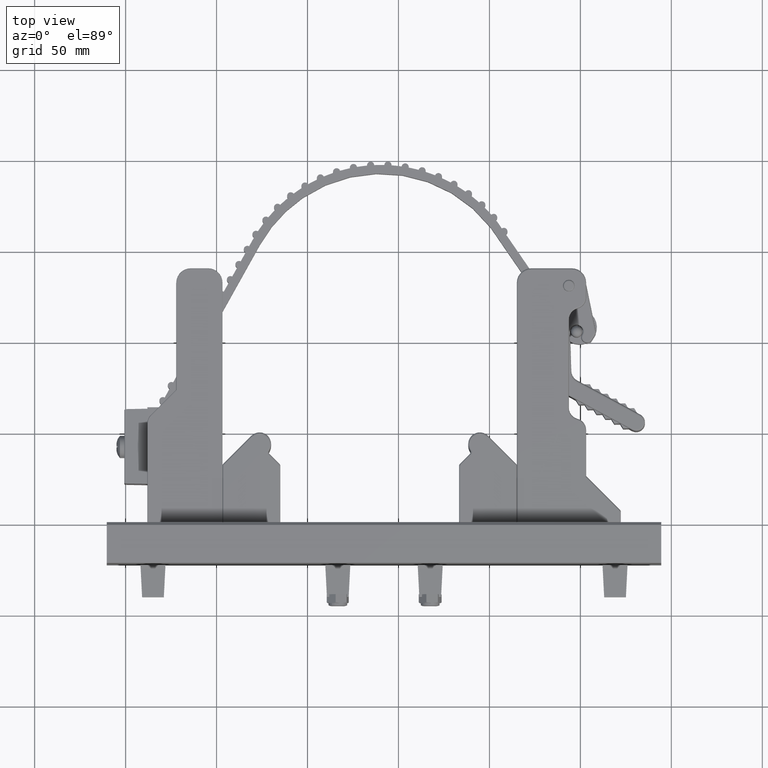
[diagram: clean part render]
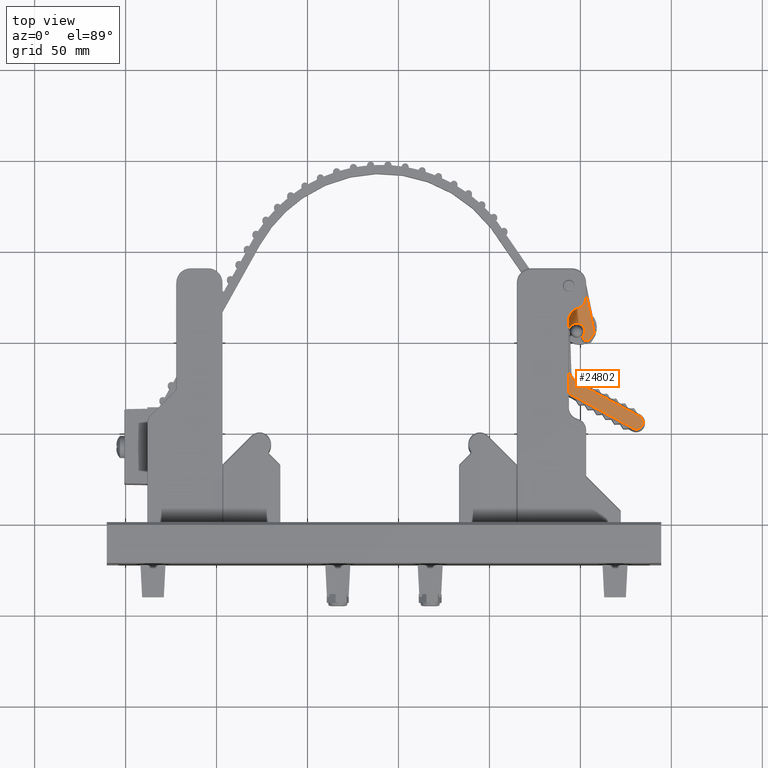
[diagram: same view with one face highlighted and labeled with its STEP entity id]
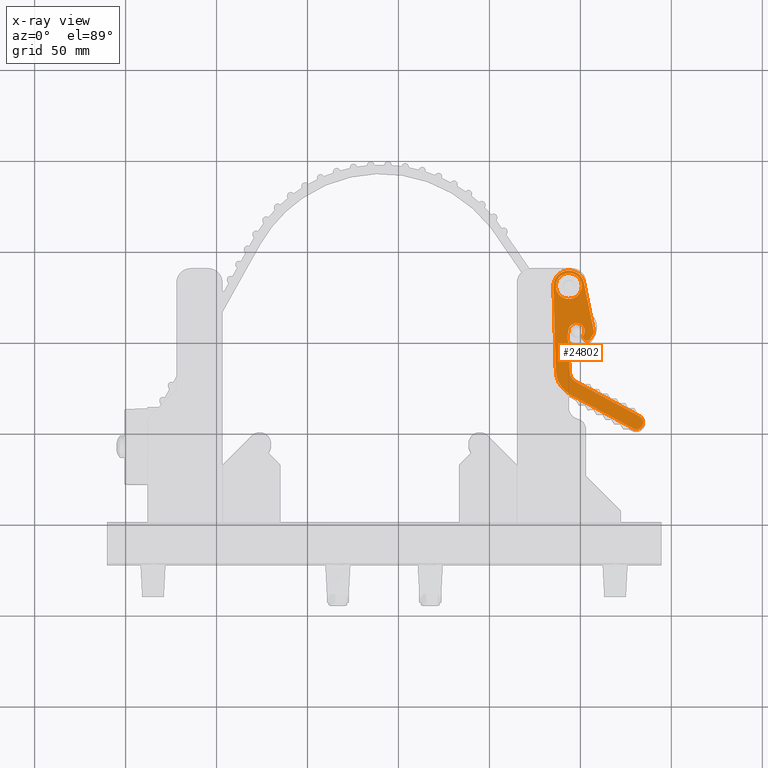
[diagram: x-ray of the same camera — body ghosted, the highlighted face saturated]
A machine part, top view. The second image highlights one B-rep face of the part: STEP entity #24802.
The next image is the same camera in x-ray: the body ghosted, the highlighted face saturated — about 0% of this face is hidden behind the body in this view.
In plain terms, the highlighted planar face has unit normal (-0, 0, -1).
Its self-contained STEP definition (entity closure, byte-faithful):
#426 = CARTESIAN_POINT ( 'NONE',  ( -0.5143528962144993100, -0.9878521173158872900, -0.8750000000000000000 ) ) ;
#427 = CARTESIAN_POINT ( 'NONE',  ( -1.448750000000000000, -2.861718516948535300, -0.8750000000000000000 ) ) ;
#436 = CARTESIAN_POINT ( 'NONE',  ( -0.2879209152510844300, -1.066375635833302100, -0.8750000000000000000 ) ) ;
#725 = CARTESIAN_POINT ( 'NONE',  ( 0.2812500000000000600, 0.0000000000000000000, -0.8750000000000000000 ) ) ;
#727 = CARTESIAN_POINT ( 'NONE',  ( 0.3350000000000000200, -2.542228540521869200E-033, -0.8750000000000000000 ) ) ;
#733 = CARTESIAN_POINT ( 'NONE',  ( 0.04083529930315341100, -1.000211275241957400, -0.8750000000000000000 ) ) ;
#735 = CARTESIAN_POINT ( 'NONE',  ( -1.301250000000000000, -3.117196011064944800, -0.8750000000000000000 ) ) ;
#745 = CARTESIAN_POINT ( 'NONE',  ( 0.04000000000000000800, -0.9941375001624821500, -0.8750000000000000000 ) ) ;
#747 = CARTESIAN_POINT ( 'NONE',  ( -0.1050000000000004700, -2.085904092724979500, -0.8750000000000000000 ) ) ;
#761 = CARTESIAN_POINT ( 'NONE',  ( -0.2399361185368783500, -0.8391898318408291800, -0.8750000000000000000 ) ) ;
#763 = CARTESIAN_POINT ( 'NONE',  ( 0.3350000000000001300, -1.834756725627492100, -0.8750000000000000000 ) ) ;
#768 = CARTESIAN_POINT ( 'NONE',  ( 0.04000000000000010500, -1.834756725627492100, -0.8750000000000000000 ) ) ;
#769 = CARTESIAN_POINT ( 'NONE',  ( -0.3299105972590897800, 0.05817213951842177500, -0.8750000000000000000 ) ) ;
#783 = CARTESIAN_POINT ( 'NONE',  ( -0.4996473951770895000, -1.056784626608064300, -0.8750000000000000000 ) ) ;
#788 = CARTESIAN_POINT ( 'NONE',  ( 0.04000000000000007000, -1.230685781858948500, -0.8750000000000000000 ) ) ;
#790 = CARTESIAN_POINT ( 'NONE',  ( 0.04249999999999883700, -2.341381586841389400, -0.8750000000000000000 ) ) ;
#795 = CARTESIAN_POINT ( 'NONE',  ( 0.03999999999999977900, -0.9900629320275555800, -0.8750000000000000000 ) ) ;
#809 = CARTESIAN_POINT ( 'NONE',  ( -0.2812500000000000600, 3.444319122601932200E-017, -0.8750000000000000000 ) ) ;
#1074 = EDGE_CURVE ( 'NONE', #78775, #78698, #32181, .T. ) ;
#1086 = EDGE_CURVE ( 'NONE', #78768, #78832, #32199, .T. ) ;
#1098 = EDGE_CURVE ( 'NONE', #32427, #32345, #32216, .T. ) ;
#2169 = CARTESIAN_POINT ( 'NONE',  ( -0.4297726103961268000, -1.160047514577966300, -0.8750000000000000000 ) ) ;
#2202 = CARTESIAN_POINT ( 'NONE',  ( 0.04083529930315349400, -1.224612006779473200, -0.8750000000000000000 ) ) ;
#2206 = CARTESIAN_POINT ( 'NONE',  ( -0.2743749999999998100, -1.112411641010715400, -0.8750000000000000000 ) ) ;
#2239 = CARTESIAN_POINT ( 'NONE',  ( 0.05626571714277794200, -1.112411641010715400, -0.8750000000000001100 ) ) ;
#7132 = LINE ( 'NONE', #13066, #7133 ) ;
#7133 = VECTOR ( 'NONE', #13067, 39.37007874015748100 ) ;
#12554 = EDGE_LOOP ( 'NONE', ( #55826, #55827, #55829, #55831, #55834, #55836, #55838, #55840, #55842, #55844, #55845, #55846, #55848, #55850, #55852, #55854, #55856, #55858, #55860, #55863 ) ) ;
#13066 = CARTESIAN_POINT ( 'NONE',  ( 0.3350000000000000200, 1.246989675926297400E-017, -0.8750000000000000000 ) ) ;
#13067 = DIRECTION ( 'NONE',  ( 3.722357241571036200E-017, -1.000000000000000000, -0.0000000000000000000 ) ) ;
#17691 = CARTESIAN_POINT ( 'NONE',  ( -1.375000000000000000, -2.989457264006740300, -0.8750000000000000000 ) ) ;
#17693 = DIRECTION ( 'NONE',  ( -0.0000000000000000000, -0.0000000000000000000, -1.000000000000000000 ) ) ;
#17694 = DIRECTION ( 'NONE',  ( 1.000000000000000000, 0.0000000000000000000, 0.0000000000000000000 ) ) ;
#17699 = CARTESIAN_POINT ( 'NONE',  ( 0.8769729670788797300, -1.518961735845054900, -0.8750000000000000000 ) ) ;
#17700 = DIRECTION ( 'NONE',  ( 0.8660254037844394800, 0.4999999999999983900, -0.0000000000000000000 ) ) ;
#17701 = CARTESIAN_POINT ( 'NONE',  ( 0.06250000000000006900, -1.230685781858948500, -0.8750000000000000000 ) ) ;
#17702 = CARTESIAN_POINT ( 'NONE',  ( 0.04000000000000003600, 1.468268131358646500E-018, -0.8750000000000000000 ) ) ;
#17703 = DIRECTION ( 'NONE',  ( -3.670670328396613300E-017, 1.000000000000000000, -0.0000000000000000000 ) ) ;
#17705 = CARTESIAN_POINT ( 'NONE',  ( -0.3593749999999997800, -1.112411641010715400, -0.8750000000000000000 ) ) ;
#17708 = DIRECTION ( 'NONE',  ( -0.0000000000000000000, -0.0000000000000000000, -1.000000000000000000 ) ) ;
#17709 = DIRECTION ( 'NONE',  ( 1.000000000000000000, 0.0000000000000000000, 0.0000000000000000000 ) ) ;
#17711 = CARTESIAN_POINT ( 'NONE',  ( -0.1406249999999999700, -0.9900629320275553500, -0.8750000000000000000 ) ) ;
#17714 = DIRECTION ( 'NONE',  ( 0.0000000000000000000, 0.0000000000000000000, 1.000000000000000000 ) ) ;
#17715 = DIRECTION ( 'NONE',  ( 1.000000000000000000, 0.0000000000000000000, 0.0000000000000000000 ) ) ;
#17720 = DIRECTION ( 'NONE',  ( 0.0000000000000000000, 0.0000000000000000000, 1.000000000000000000 ) ) ;
#17721 = DIRECTION ( 'NONE',  ( 1.000000000000000000, 0.0000000000000000000, 0.0000000000000000000 ) ) ;
#17725 = CARTESIAN_POINT ( 'NONE',  ( 0.04000000000000215900, -8.648973817487308000E-017, -0.8750000000000000000 ) ) ;
#17726 = DIRECTION ( 'NONE',  ( 2.162243454371710100E-015, 1.000000000000000000, -0.0000000000000000000 ) ) ;
#17727 = CARTESIAN_POINT ( 'NONE',  ( 0.06250000000000001400, -0.9941375001624821500, -0.8750000000000000000 ) ) ;
#17728 = CARTESIAN_POINT ( 'NONE',  ( -0.1492159272090722600, -0.9770116257830292500, -0.8750000000000000000 ) ) ;
#17731 = DIRECTION ( 'NONE',  ( -0.0000000000000000000, -0.0000000000000000000, -1.000000000000000000 ) ) ;
#17732 = DIRECTION ( 'NONE',  ( 1.000000000000000000, 0.0000000000000000000, 0.0000000000000000000 ) ) ;
#17734 = CARTESIAN_POINT ( 'NONE',  ( -0.3593749999999997800, -1.112411641010715400, -0.8750000000000000000 ) ) ;
#17737 = DIRECTION ( 'NONE',  ( 0.0000000000000000000, 0.0000000000000000000, 1.000000000000000000 ) ) ;
#17738 = DIRECTION ( 'NONE',  ( 1.000000000000000000, 0.0000000000000000000, 0.0000000000000000000 ) ) ;
#17742 = DIRECTION ( 'NONE',  ( -0.0000000000000000000, -0.0000000000000000000, -1.000000000000000000 ) ) ;
#17743 = DIRECTION ( 'NONE',  ( 1.000000000000000000, -4.820908224113407100E-015, 0.0000000000000000000 ) ) ;
#17745 = CARTESIAN_POINT ( 'NONE',  ( -0.3299105972590899400, 0.05817213951842164400, -0.8750000000000000000 ) ) ;
#17746 = DIRECTION ( 'NONE',  ( 0.1736481776669301600, 0.9848077530122080200, -0.0000000000000000000 ) ) ;
#17750 = CARTESIAN_POINT ( 'NONE',  ( -0.8332235981390447900, -0.5638164953449181800, -0.8750000000000000000 ) ) ;
#17751 = DIRECTION ( 'NONE',  ( -0.5604220419676565500, 0.8282071811309065200, -0.0000000000000000000 ) ) ;
#17752 = CARTESIAN_POINT ( 'NONE',  ( 0.0000000000000000000, 0.0000000000000000000, -0.8750000000000000000 ) ) ;
#17753 = CARTESIAN_POINT ( 'NONE',  ( -0.4218750000000000000, -1.004158465537660700, -0.8750000000000000000 ) ) ;
#17754 = DIRECTION ( 'NONE',  ( 1.000000000000000000, -1.454588174222329600E-015, 0.0000000000000000000 ) ) ;
#17755 = DIRECTION ( 'NONE',  ( -0.0000000000000000000, -0.0000000000000000000, -1.000000000000000000 ) ) ;
#17756 = DIRECTION ( 'NONE',  ( -0.0000000000000000000, -0.0000000000000000000, -1.000000000000000000 ) ) ;
#17757 = DIRECTION ( 'NONE',  ( 1.000000000000000000, 0.0000000000000000000, 0.0000000000000000000 ) ) ;
#17863 = AXIS2_PLACEMENT_3D ( 'NONE', #17701, #17708, #17709 ) ;
#17872 = AXIS2_PLACEMENT_3D ( 'NONE', #17691, #17693, #17694 ) ;
#17873 = AXIS2_PLACEMENT_3D ( 'NONE', #17727, #17731, #17732 ) ;
#17876 = AXIS2_PLACEMENT_3D ( 'NONE', #17752, #17756, #17757 ) ;
#17879 = AXIS2_PLACEMENT_3D ( 'NONE', #17705, #17714, #17715 ) ;
#17881 = AXIS2_PLACEMENT_3D ( 'NONE', #17711, #17720, #17721 ) ;
#17886 = AXIS2_PLACEMENT_3D ( 'NONE', #17728, #17737, #17738 ) ;
#17888 = AXIS2_PLACEMENT_3D ( 'NONE', #17734, #17742, #17743 ) ;
#17893 = AXIS2_PLACEMENT_3D ( 'NONE', #17753, #17755, #17754 ) ;
#17897 = AXIS2_PLACEMENT_3D ( 'NONE', #19883, #19901, #19903 ) ;
#19883 = CARTESIAN_POINT ( 'NONE',  ( 0.0000000000000000000, 0.0000000000000000000, -0.8750000000000000000 ) ) ;
#19901 = DIRECTION ( 'NONE',  ( -0.0000000000000000000, -0.0000000000000000000, -1.000000000000000000 ) ) ;
#19903 = DIRECTION ( 'NONE',  ( 1.000000000000000000, 0.0000000000000000000, 0.0000000000000000000 ) ) ;
#23364 = EDGE_CURVE ( 'NONE', #32409, #32356, #41014, .T. ) ;
#23366 = EDGE_CURVE ( 'NONE', #32368, #32388, #41025, .T. ) ;
#24046 = EDGE_CURVE ( 'NONE', #32382, #32409, #48769, .T. ) ;
#24802 = ADVANCED_FACE ( 'NONE', ( #58708, #58704 ), #56361, .F. ) ;
#31405 = AXIS2_PLACEMENT_3D ( 'NONE', #42625, #42628, #42630 ) ;
#31406 = AXIS2_PLACEMENT_3D ( 'NONE', #42594, #42597, #42599 ) ;
#31413 = AXIS2_PLACEMENT_3D ( 'NONE', #42655, #42658, #42660 ) ;
#31516 = AXIS2_PLACEMENT_3D ( 'NONE', #42168, #42169, #42170 ) ;
#31967 = VERTEX_POINT ( 'NONE', #426 ) ;
#31968 = VERTEX_POINT ( 'NONE', #427 ) ;
#31981 = VERTEX_POINT ( 'NONE', #436 ) ;
#32181 = CIRCLE ( 'NONE', #31406, 0.08499999999999997800 ) ;
#32199 = CIRCLE ( 'NONE', #31405, 0.4156407171427777300 ) ;
#32216 = CIRCLE ( 'NONE', #31413, 0.2812500000000000600 ) ;
#32345 = VERTEX_POINT ( 'NONE', #725 ) ;
#32347 = VERTEX_POINT ( 'NONE', #727 ) ;
#32354 = VERTEX_POINT ( 'NONE', #733 ) ;
#32356 = VERTEX_POINT ( 'NONE', #735 ) ;
#32366 = VERTEX_POINT ( 'NONE', #745 ) ;
#32368 = VERTEX_POINT ( 'NONE', #747 ) ;
#32381 = VERTEX_POINT ( 'NONE', #761 ) ;
#32382 = VERTEX_POINT ( 'NONE', #763 ) ;
#32388 = VERTEX_POINT ( 'NONE', #768 ) ;
#32389 = VERTEX_POINT ( 'NONE', #769 ) ;
#32402 = VERTEX_POINT ( 'NONE', #783 ) ;
#32407 = VERTEX_POINT ( 'NONE', #788 ) ;
#32409 = VERTEX_POINT ( 'NONE', #790 ) ;
#32414 = VERTEX_POINT ( 'NONE', #795 ) ;
#32427 = VERTEX_POINT ( 'NONE', #809 ) ;
#41014 = LINE ( 'NONE', #42163, #41016 ) ;
#41016 = VECTOR ( 'NONE', #42164, 39.37007874015748100 ) ;
#41025 = CIRCLE ( 'NONE', #31516, 0.2899999999999997600 ) ;
#42163 = CARTESIAN_POINT ( 'NONE',  ( 1.024472967078878600, -1.774439229961466000, -0.8750000000000000000 ) ) ;
#42164 = DIRECTION ( 'NONE',  ( -0.8660254037844398200, -0.4999999999999977200, -0.0000000000000000000 ) ) ;
#42168 = CARTESIAN_POINT ( 'NONE',  ( -0.2499999999999998900, -1.834756725627492100, -0.8750000000000000000 ) ) ;
#42169 = DIRECTION ( 'NONE',  ( 0.0000000000000000000, 0.0000000000000000000, 1.000000000000000000 ) ) ;
#42170 = DIRECTION ( 'NONE',  ( 1.000000000000000000, 0.0000000000000000000, 0.0000000000000000000 ) ) ;
#42594 = CARTESIAN_POINT ( 'NONE',  ( -0.3593749999999997800, -1.112411641010715400, -0.8750000000000000000 ) ) ;
#42597 = DIRECTION ( 'NONE',  ( -0.0000000000000000000, -0.0000000000000000000, -1.000000000000000000 ) ) ;
#42599 = DIRECTION ( 'NONE',  ( 1.000000000000000000, 0.0000000000000000000, 0.0000000000000000000 ) ) ;
#42625 = CARTESIAN_POINT ( 'NONE',  ( -0.3593749999999997800, -1.112411641010715400, -0.8750000000000000000 ) ) ;
#42628 = DIRECTION ( 'NONE',  ( 0.0000000000000000000, 0.0000000000000000000, 1.000000000000000000 ) ) ;
#42630 = DIRECTION ( 'NONE',  ( 1.000000000000000000, 0.0000000000000000000, 0.0000000000000000000 ) ) ;
#42655 = CARTESIAN_POINT ( 'NONE',  ( 0.0000000000000000000, 0.0000000000000000000, -0.8750000000000000000 ) ) ;
#42658 = DIRECTION ( 'NONE',  ( -0.0000000000000000000, -0.0000000000000000000, -1.000000000000000000 ) ) ;
#42660 = DIRECTION ( 'NONE',  ( 1.000000000000000000, 0.0000000000000000000, 0.0000000000000000000 ) ) ;
#44551 = AXIS2_PLACEMENT_3D ( 'NONE', #47444, #47462, #47464 ) ;
#44935 = AXIS2_PLACEMENT_3D ( 'NONE', #56364, #56372, #56373 ) ;
#47444 = CARTESIAN_POINT ( 'NONE',  ( -0.2499999999999998900, -1.834756725627492100, -0.8750000000000000000 ) ) ;
#47462 = DIRECTION ( 'NONE',  ( -0.0000000000000000000, -0.0000000000000000000, -1.000000000000000000 ) ) ;
#47464 = DIRECTION ( 'NONE',  ( 1.000000000000000000, 0.0000000000000000000, 0.0000000000000000000 ) ) ;
#48769 = CIRCLE ( 'NONE', #44551, 0.5850000000000000800 ) ;
#50993 = EDGE_CURVE ( 'NONE', #32347, #32382, #7132, .T. ) ;
#55826 = ORIENTED_EDGE ( 'NONE', *, *, #50993, .T. ) ;
#55827 = ORIENTED_EDGE ( 'NONE', *, *, #24046, .T. ) ;
#55829 = ORIENTED_EDGE ( 'NONE', *, *, #23364, .T. ) ;
#55831 = ORIENTED_EDGE ( 'NONE', *, *, #61060, .T. ) ;
#55834 = ORIENTED_EDGE ( 'NONE', *, *, #61064, .T. ) ;
#55836 = ORIENTED_EDGE ( 'NONE', *, *, #23366, .T. ) ;
#55838 = ORIENTED_EDGE ( 'NONE', *, *, #61066, .T. ) ;
#55840 = ORIENTED_EDGE ( 'NONE', *, *, #61070, .T. ) ;
#55842 = ORIENTED_EDGE ( 'NONE', *, *, #1086, .T. ) ;
#55844 = ORIENTED_EDGE ( 'NONE', *, *, #61073, .T. ) ;
#55845 = ORIENTED_EDGE ( 'NONE', *, *, #61083, .T. ) ;
#55846 = ORIENTED_EDGE ( 'NONE', *, *, #61080, .T. ) ;
#55848 = ORIENTED_EDGE ( 'NONE', *, *, #61076, .T. ) ;
#55850 = ORIENTED_EDGE ( 'NONE', *, *, #61085, .T. ) ;
#55852 = ORIENTED_EDGE ( 'NONE', *, *, #61087, .T. ) ;
#55854 = ORIENTED_EDGE ( 'NONE', *, *, #1074, .T. ) ;
#55856 = ORIENTED_EDGE ( 'NONE', *, *, #61093, .T. ) ;
#55858 = ORIENTED_EDGE ( 'NONE', *, *, #61099, .T. ) ;
#55860 = ORIENTED_EDGE ( 'NONE', *, *, #61089, .T. ) ;
#55863 = ORIENTED_EDGE ( 'NONE', *, *, #61095, .T. ) ;
#55865 = ORIENTED_EDGE ( 'NONE', *, *, #61104, .F. ) ;
#55867 = ORIENTED_EDGE ( 'NONE', *, *, #1098, .F. ) ;
#56361 = PLANE ( 'NONE',  #44935 ) ;
#56364 = CARTESIAN_POINT ( 'NONE',  ( 0.0000000000000000000, 0.0000000000000000000, -0.8750000000000000000 ) ) ;
#56372 = DIRECTION ( 'NONE',  ( 0.0000000000000000000, 0.0000000000000000000, 1.000000000000000000 ) ) ;
#56373 = DIRECTION ( 'NONE',  ( 1.000000000000000000, 0.0000000000000000000, -0.0000000000000000000 ) ) ;
#58704 = FACE_BOUND ( 'NONE', #61712, .T. ) ;
#58708 = FACE_OUTER_BOUND ( 'NONE', #12554, .T. ) ;
#61060 = EDGE_CURVE ( 'NONE', #32356, #31968, #69300, .T. ) ;
#61064 = EDGE_CURVE ( 'NONE', #31968, #32368, #69297, .T. ) ;
#61066 = EDGE_CURVE ( 'NONE', #32388, #32407, #69298, .T. ) ;
#61070 = EDGE_CURVE ( 'NONE', #32407, #78768, #69308, .T. ) ;
#61073 = EDGE_CURVE ( 'NONE', #78832, #32354, #69311, .T. ) ;
#61076 = EDGE_CURVE ( 'NONE', #32414, #32381, #69314, .T. ) ;
#61080 = EDGE_CURVE ( 'NONE', #32366, #32414, #69316, .T. ) ;
#61083 = EDGE_CURVE ( 'NONE', #32354, #32366, #69321, .T. ) ;
#61085 = EDGE_CURVE ( 'NONE', #32381, #31981, #69324, .T. ) ;
#61087 = EDGE_CURVE ( 'NONE', #31981, #78775, #69328, .T. ) ;
#61089 = EDGE_CURVE ( 'NONE', #31967, #32389, #69323, .T. ) ;
#61093 = EDGE_CURVE ( 'NONE', #78698, #32402, #69331, .T. ) ;
#61095 = EDGE_CURVE ( 'NONE', #32389, #32347, #69336, .T. ) ;
#61099 = EDGE_CURVE ( 'NONE', #32402, #31967, #69339, .T. ) ;
#61104 = EDGE_CURVE ( 'NONE', #32345, #32427, #69345, .T. ) ;
#61712 = EDGE_LOOP ( 'NONE', ( #55865, #55867 ) ) ;
#69297 = LINE ( 'NONE', #17699, #69302 ) ;
#69298 = LINE ( 'NONE', #17702, #69303 ) ;
#69300 = CIRCLE ( 'NONE', #17872, 0.1474999999999998500 ) ;
#69302 = VECTOR ( 'NONE', #17700, 39.37007874015748100 ) ;
#69303 = VECTOR ( 'NONE', #17703, 39.37007874015748100 ) ;
#69308 = CIRCLE ( 'NONE', #17863, 0.02250000000000000600 ) ;
#69311 = CIRCLE ( 'NONE', #17879, 0.4156407171427777300 ) ;
#69314 = CIRCLE ( 'NONE', #17881, 0.1806249999999997600 ) ;
#69316 = LINE ( 'NONE', #17725, #69317 ) ;
#69317 = VECTOR ( 'NONE', #17726, 39.37007874015748100 ) ;
#69321 = CIRCLE ( 'NONE', #17873, 0.02249999999999997500 ) ;
#69323 = LINE ( 'NONE', #17745, #69325 ) ;
#69324 = CIRCLE ( 'NONE', #17886, 0.1650000000000000100 ) ;
#69325 = VECTOR ( 'NONE', #17746, 39.37007874015748900 ) ;
#69328 = CIRCLE ( 'NONE', #17888, 0.08499999999999997800 ) ;
#69331 = LINE ( 'NONE', #17750, #69332 ) ;
#69332 = VECTOR ( 'NONE', #17751, 39.37007874015748100 ) ;
#69336 = CIRCLE ( 'NONE', #17876, 0.3350000000000001300 ) ;
#69339 = CIRCLE ( 'NONE', #17893, 0.09390451682741056400 ) ;
#69345 = CIRCLE ( 'NONE', #17897, 0.2812500000000000600 ) ;
#78698 = VERTEX_POINT ( 'NONE', #2169 ) ;
#78768 = VERTEX_POINT ( 'NONE', #2202 ) ;
#78775 = VERTEX_POINT ( 'NONE', #2206 ) ;
#78832 = VERTEX_POINT ( 'NONE', #2239 ) ;